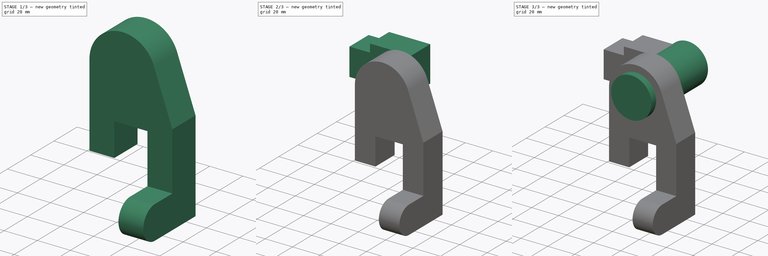
[diagram: build sequence overview — one tinted view per stage of 3, left to right]
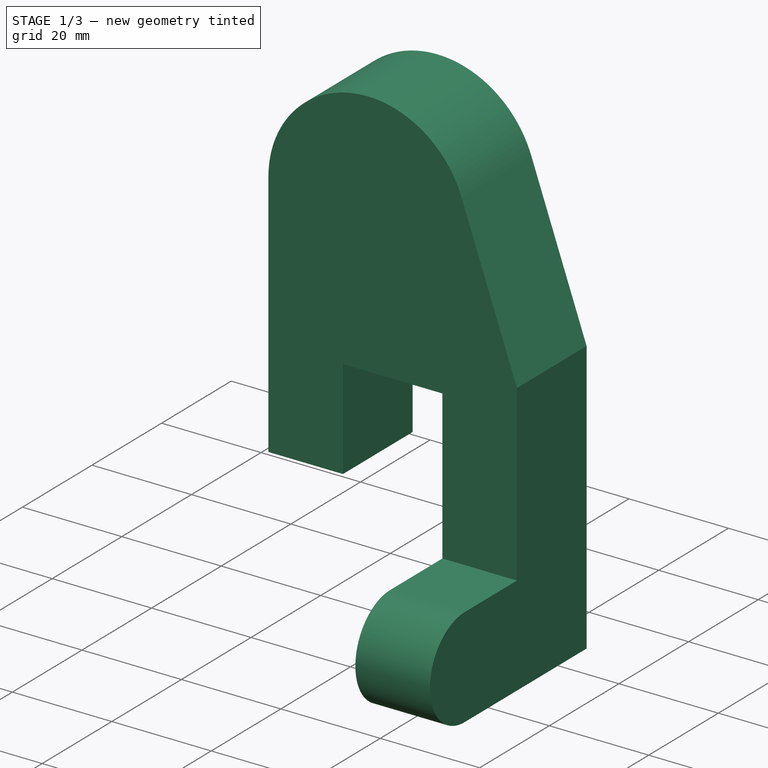
[diagram: stage 1 of 3 — iso view after this stage's code; geometry added in this stage tinted green]
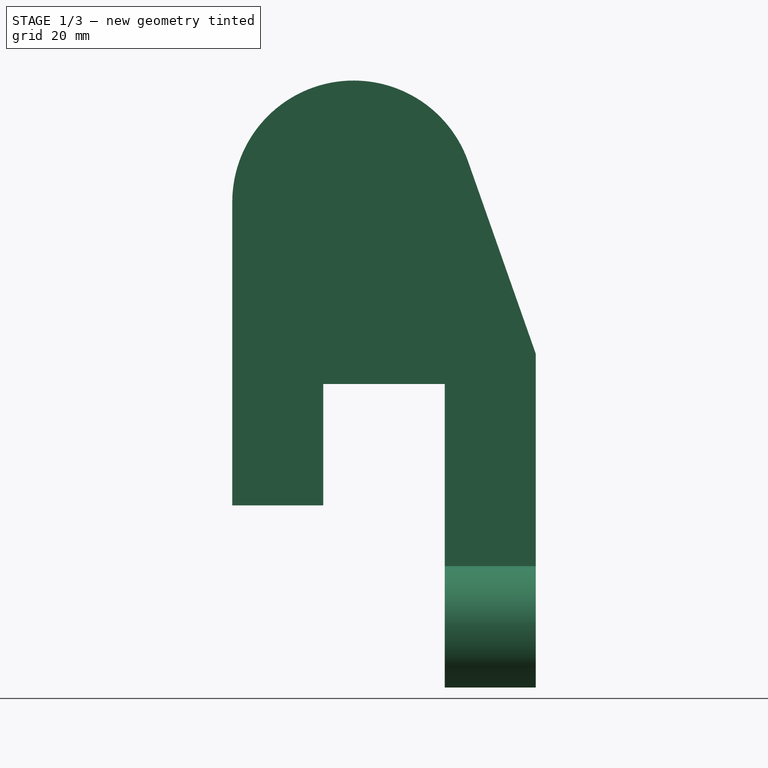
[diagram: stage 1 of 3 — front view after this stage's code; geometry added in this stage tinted green]
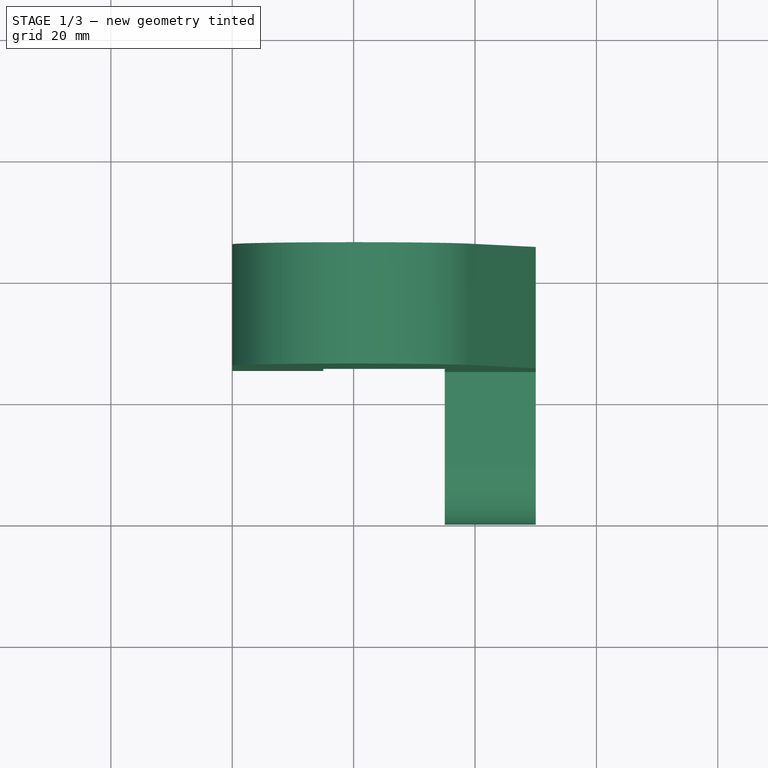
[diagram: stage 1 of 3 — top view after this stage's code; geometry added in this stage tinted green]
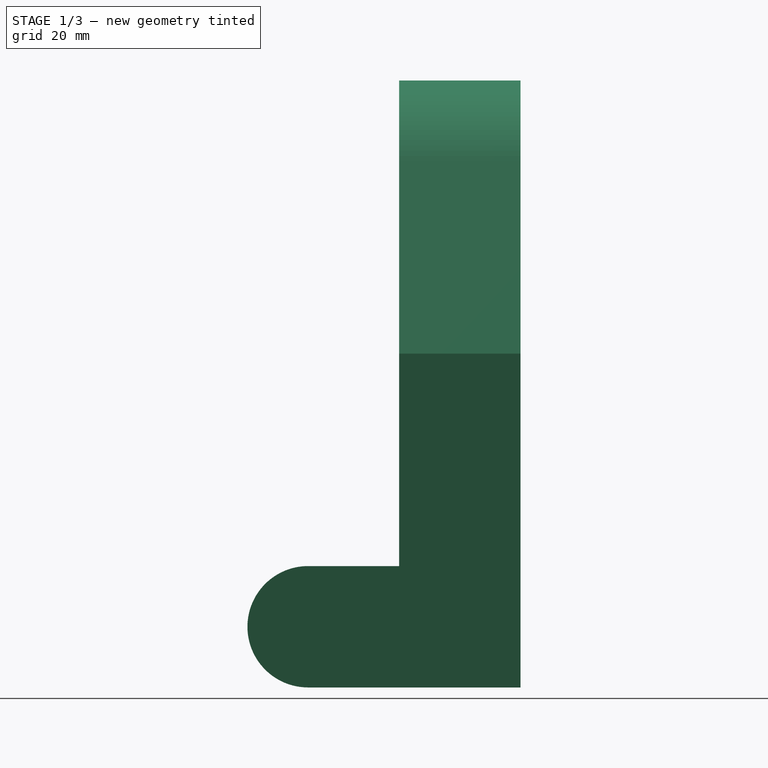
[diagram: stage 1 of 3 — right view after this stage's code; geometry added in this stage tinted green]
FCSTD DOCUMENT  (FreeCAD 0.16R)
Label: ejer12
License: All rights reserved
LicenseURL: http://en.wikipedia.org/wiki/All_rights_reserved
objects: Sketcher::SketchObject×4, PartDesign::Pad×4, Part::MultiFuse×1
note: 13 computed .brp shape members not serialized (recipe doc carries the construction recipe); baked Part::Feature solids carry a one-line shape summary decoded from their .brp

FEATURE [Sketcher::SketchObject] Sketch002
  Placement = pos=(0,5,0) rot=(-1,0,0;4.71239rad)
  sketch-geometry (9):
    g0: LineSegment StartX=-20 StartY=80 StartZ=0 EndX=-20 EndY=30 EndZ=0
    g1: LineSegment StartX=-20 StartY=30 StartZ=0 EndX=-5 EndY=30 EndZ=0
    g2: LineSegment StartX=-5 StartY=30 StartZ=0 EndX=-5 EndY=50 EndZ=0
    g3: LineSegment StartX=-5 StartY=50 StartZ=0 EndX=15 EndY=50 EndZ=0
    g4: LineSegment StartX=15 StartY=50 StartZ=0 EndX=15 EndY=0 EndZ=0
    g5: LineSegment StartX=15 StartY=0 StartZ=0 EndX=30 EndY=0 EndZ=0
    g6: LineSegment StartX=30 StartY=0 StartZ=0 EndX=30 EndY=55 EndZ=0
    g7: LineSegment StartX=30 StartY=55 StartZ=0 EndX=18.8659 EndY=86.6391 EndZ=0
    g8: ArcOfCircle CenterX=0 CenterY=80 CenterZ=0 NormalX=0 NormalY=0 NormalZ=1 Radius=20 StartAngle=0.338373 EndAngle=3.14159
  constraints (28):
    c: Vertical(g0)
    c: DistanceY(g-1,g0) = 30
    c: Coincident(g0,g1)
    c: Horizontal(g1)
    c: Coincident(g1,g2)
    c: Vertical(g2)
    c: Coincident(g2,g3)
    c: Horizontal(g3)
    c: Coincident(g3,g4)
    c: PointOnObject(g4,g-1)
    c: Vertical(g4)
    c: Coincident(g4,g5)
    c: Horizontal(g5)
    c: Coincident(g5,g6)
    c: Vertical(g6)
    c: DistanceX(g1,g1) = 15
    c: DistanceY(g2,g2) = 20
    c: DistanceX(g3,g3) = 20
    c: DistanceX(g5,g5) = 15
    c: DistanceY(g5,g6) = 55
    c: Coincident(g6,g7)
    c: Coincident(g8,g7)
    c: Coincident(g8,g0)
    c: Radius(g8) = 20
    c: PointOnObject(g8,g-2)
    c: Tangent(g7,g8)
    c: Tangent(g0,g8)
    c: DistanceY(g-1,g8) = 80
FEATURE [PartDesign::Pad] Pad002
  Length = 20
  Length2 = 100
  Placement = pos=(0,5,0) rot=(-1,0,0;4.71239rad)
  Reversed = true
  Sketch = -> Sketch002
  Type = 0
FEATURE [Sketcher::SketchObject] Sketch003
  ExternalGeometry = -> [Pad002]
  Placement = pos=(15,5,0) rot=(0.707107,0,-0.707107;3.14159rad)
  Support = -> Pad002 [Face5]
  sketch-geometry (4):
    g0: LineSegment StartX=-20 StartY=15 StartZ=0 EndX=-20 EndY=0 EndZ=0
    g1: LineSegment StartX=-20 StartY=0 StartZ=0 EndX=0 EndY=0 EndZ=0
    g2: LineSegment StartX=0 StartY=0 StartZ=0 EndX=-3e-11 EndY=15 EndZ=0
    g3: ArcOfCircle CenterX=-10 CenterY=15 CenterZ=0 NormalX=0 NormalY=0 NormalZ=1 Radius=10 StartAngle=2.43247e-06 EndAngle=3.14159
  constraints (13):
    c: PointOnObject(g0,g-3)
    c: Coincident(g0,g1)
    c: PointOnObject(g1,g-3)
    c: Coincident(g1,g2)
    c: DistanceX(g0,g1) = 20
    c: Coincident(g1,g-1)
    c: Coincident(g3,g0)
    c: Coincident(g3,g2)
    c: Radius(g3) = 10
    c: Tangent(g3,g0)
    c: Tangent(g2,g3)
    c: Vertical(g0)
    c: DistanceY(g-1,g3) = 15
FEATURE [PartDesign::Pad] Pad003
  Length = 15
  Length2 = 100
  Placement = pos=(0,5,0) rot=(-1,0,0;4.71239rad)
  Reversed = true
  Sketch = -> Sketch003
  Type = 0
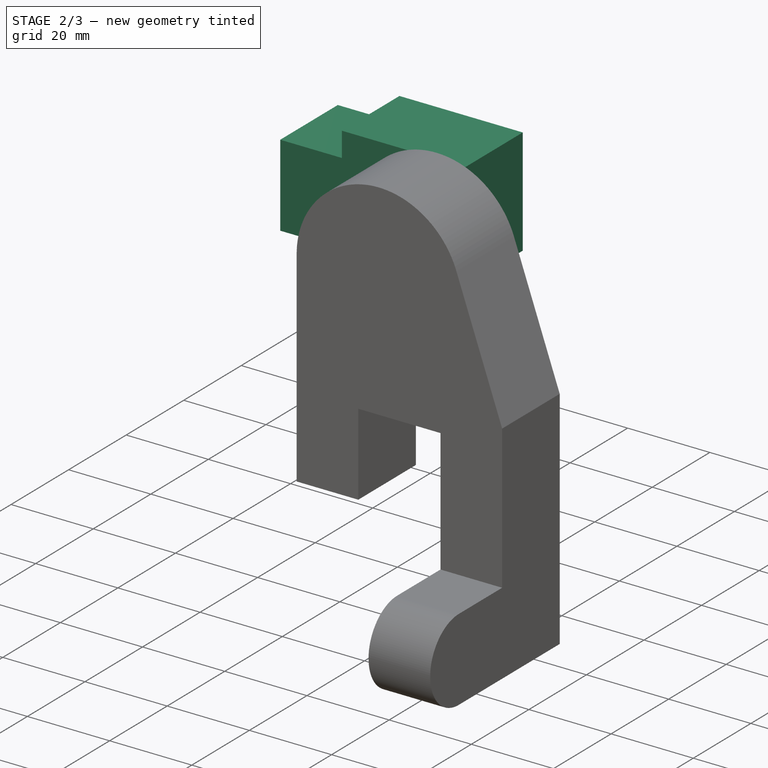
[diagram: stage 2 of 3 — iso view after this stage's code; geometry added in this stage tinted green]
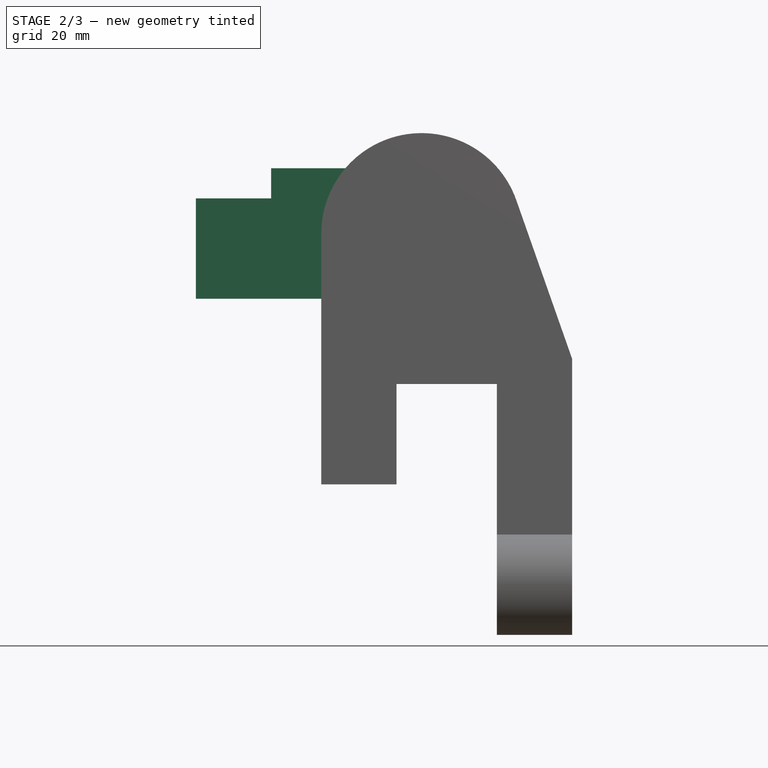
[diagram: stage 2 of 3 — front view after this stage's code; geometry added in this stage tinted green]
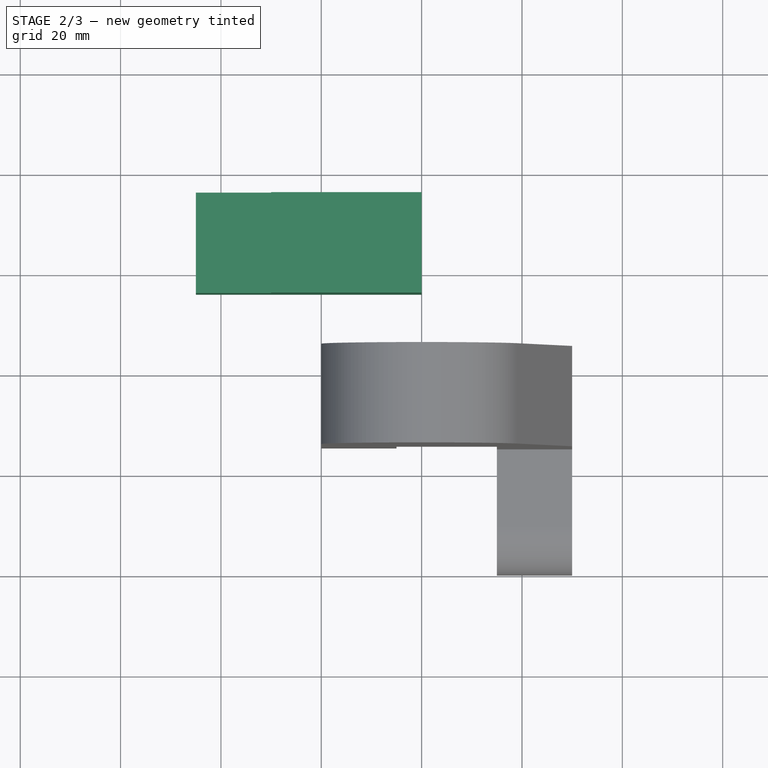
[diagram: stage 2 of 3 — top view after this stage's code; geometry added in this stage tinted green]
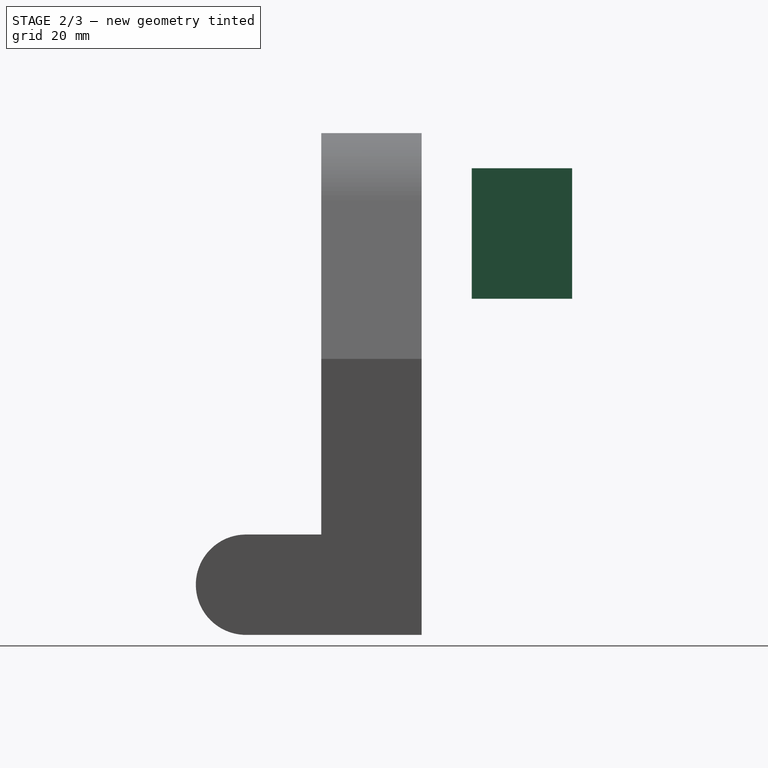
[diagram: stage 2 of 3 — right view after this stage's code; geometry added in this stage tinted green]
FEATURE [Sketcher::SketchObject] Sketch001
  Placement = pos=(0,35,0) rot=(-1,0,0;4.71239rad)
  sketch-geometry (6):
    g0: LineSegment StartX=0 StartY=93 StartZ=0 EndX=-30 EndY=93 EndZ=0
    g1: LineSegment StartX=-30 StartY=93 StartZ=0 EndX=-30 EndY=87 EndZ=0
    g2: LineSegment StartX=-30 StartY=87 StartZ=0 EndX=-45 EndY=87 EndZ=0
    g3: LineSegment StartX=-45 StartY=87 StartZ=0 EndX=-45 EndY=67 EndZ=0
    g4: LineSegment StartX=-45 StartY=67 StartZ=0 EndX=0 EndY=67 EndZ=0
    g5: LineSegment StartX=0 StartY=67 StartZ=0 EndX=0 EndY=93 EndZ=0
  constraints (18):
    c: PointOnObject(g0,g-2)
    c: Horizontal(g0)
    c: Coincident(g0,g1)
    c: Coincident(g1,g2)
    c: Horizontal(g2)
    c: Coincident(g2,g3)
    c: Vertical(g3)
    c: Coincident(g3,g4)
    c: Horizontal(g4)
    c: Coincident(g4,g5)
    c: Coincident(g5,g0)
    c: DistanceX(g0,g0) = 30
    c: DistanceY(g1,g1) = 6
    c: DistanceX(g2,g2) = 15
    c: DistanceY(g3,g3) = 20
    c: DistanceX(g4,g4) = 45
    c: Vertical(g5)
    c: DistanceY(g-1,g4) = 67
FEATURE [PartDesign::Pad] Pad001
  Length = 20
  Length2 = 100
  Placement = pos=(0,35,0) rot=(-1,0,0;4.71239rad)
  Reversed = true
  Sketch = -> Sketch001
  Type = 0
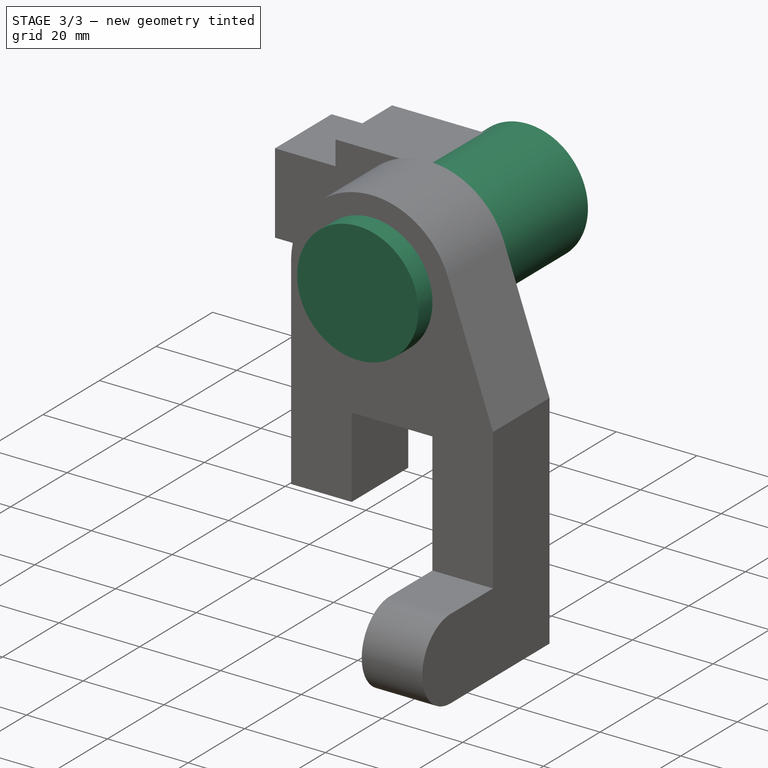
[diagram: stage 3 of 3 — iso view after this stage's code; geometry added in this stage tinted green]
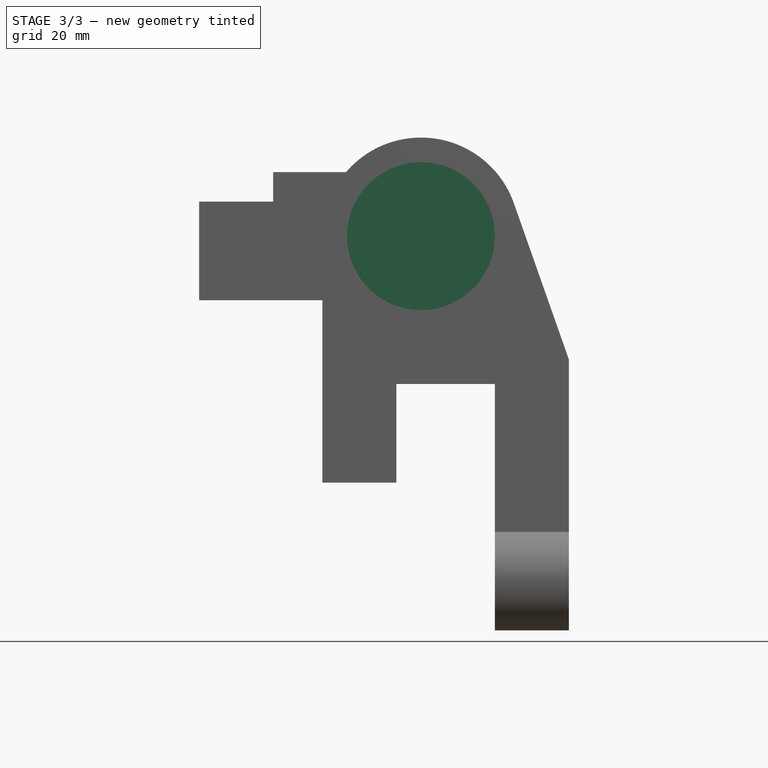
[diagram: stage 3 of 3 — front view after this stage's code; geometry added in this stage tinted green]
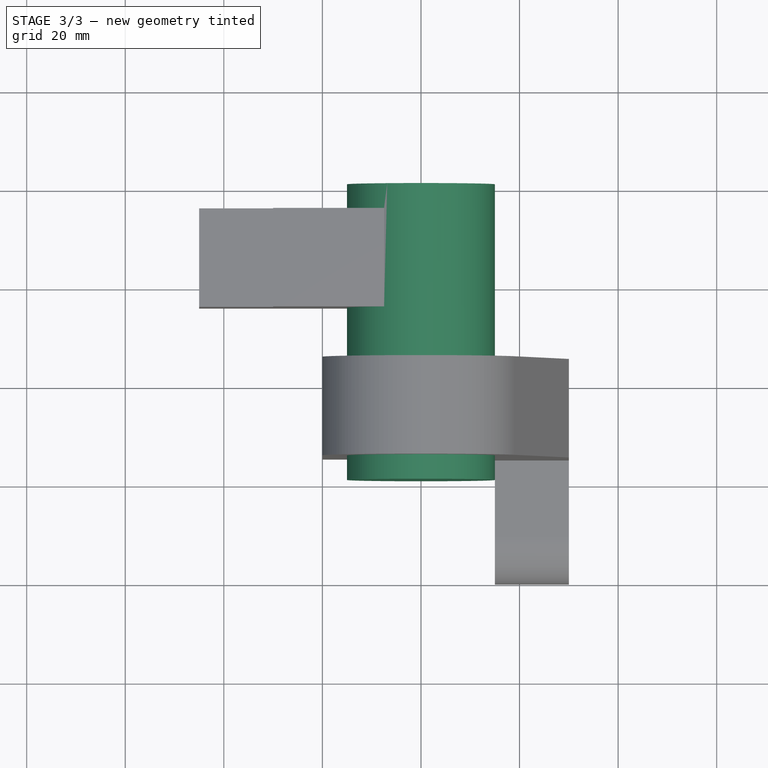
[diagram: stage 3 of 3 — top view after this stage's code; geometry added in this stage tinted green]
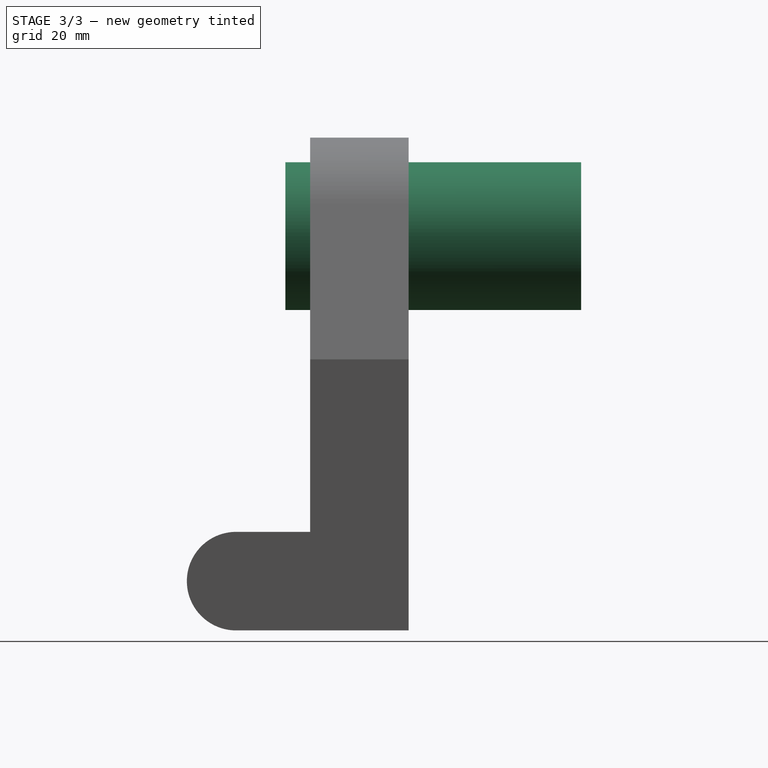
[diagram: stage 3 of 3 — right view after this stage's code; geometry added in this stage tinted green]
FEATURE [Sketcher::SketchObject] Sketch
  Placement = pos=(0,0,0) rot=(-1,0,0;4.71239rad)
  sketch-geometry (1):
    g0: Circle CenterX=0 CenterY=80 CenterZ=0 NormalX=0 NormalY=0 NormalZ=1 Radius=15
  constraints (3):
    c: DistanceY(g-1,g0) = 80
    c: Radius(g0) = 15
    c: PointOnObject(g0,g-2)
FEATURE [PartDesign::Pad] Pad
  Length = 60
  Length2 = 100
  Placement = pos=(0,0,0) rot=(-1,0,0;4.71239rad)
  Reversed = true
  Sketch = -> Sketch
  Type = 0
FEATURE [Part::MultiFuse] Fusion
  Shapes = -> [Pad,Pad001]
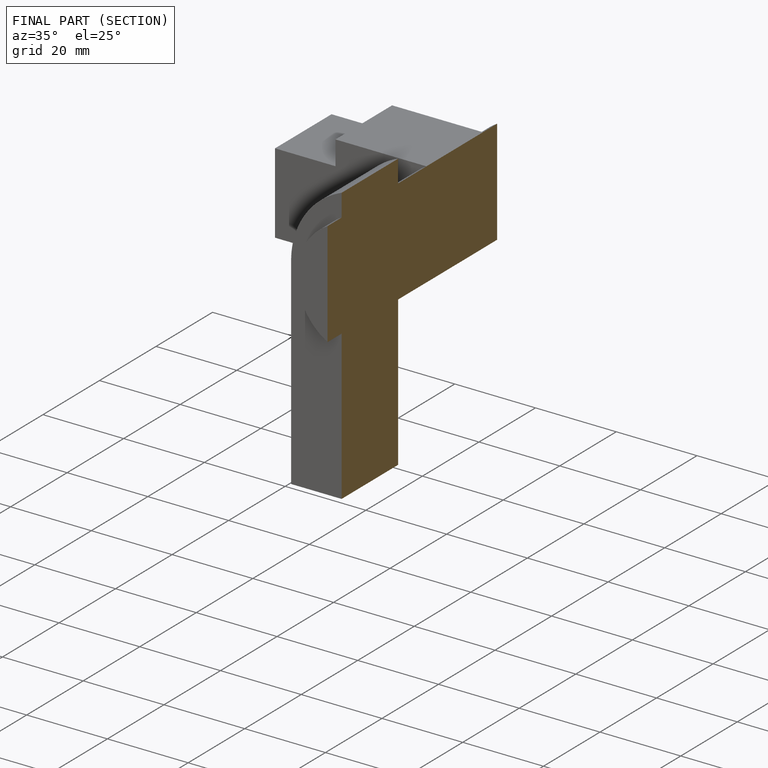
[diagram: finished part — half-section view (interior)]
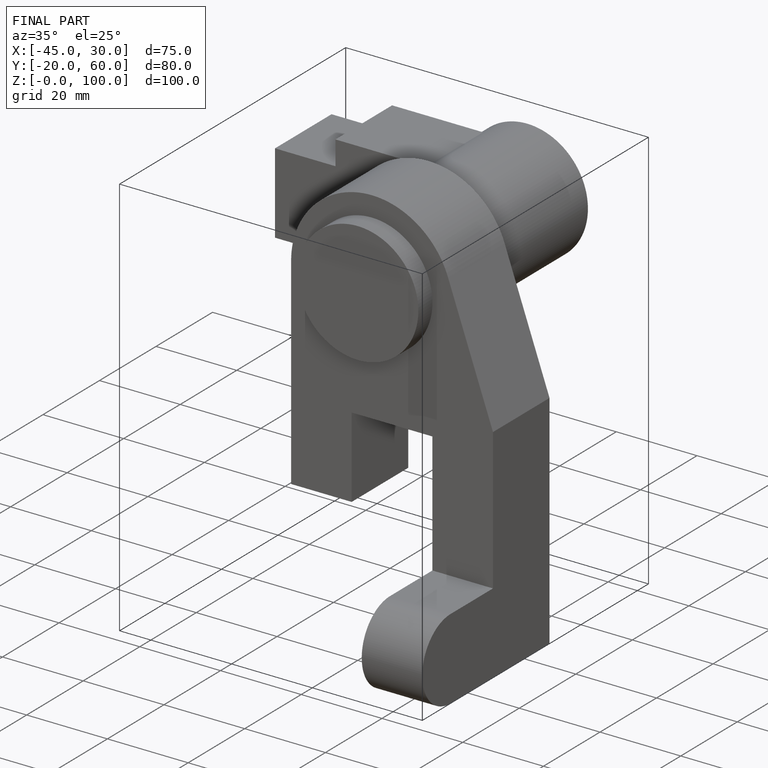
[diagram: finished part — iso view with bounding-box wireframe]
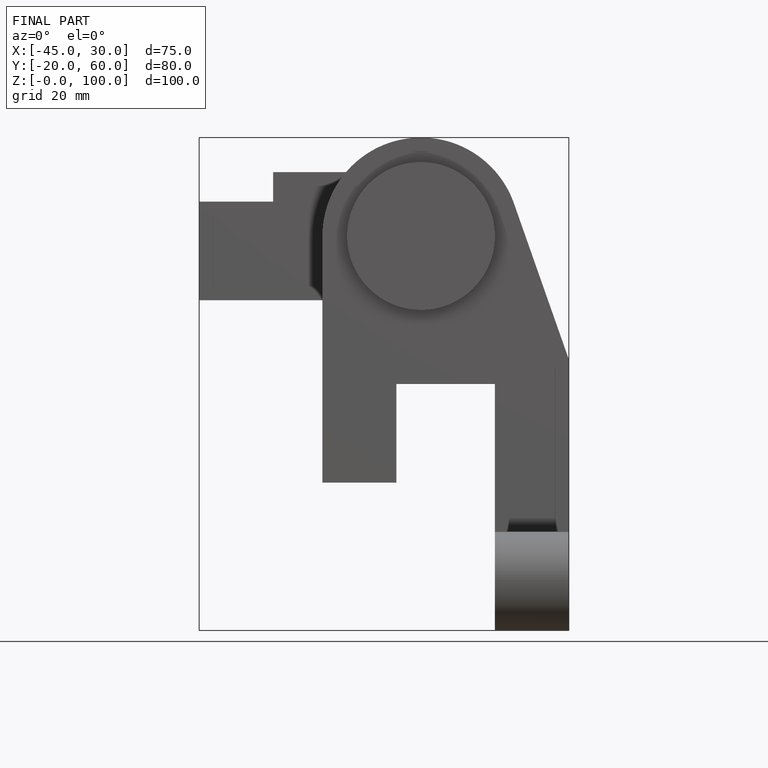
[diagram: finished part — front view with bounding-box wireframe]
